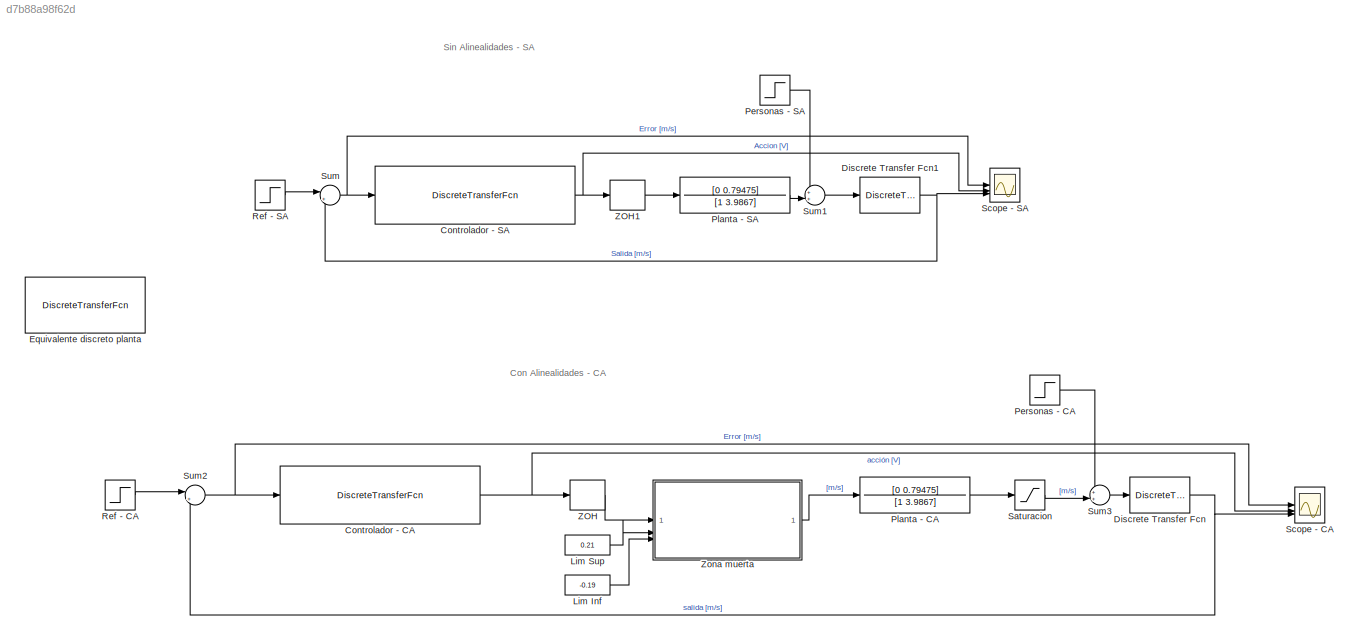
MODEL slx_d7b88a98f62d
KIND model
CONFIG AbsTol = auto
CONFIG EnableMultiTasking = off
CONFIG FixedStep = auto
CONFIG MaxStep = auto
CONFIG MinStep = auto
CONFIG RelTol = 1e-3
CONFIG SampleTimeConstraint = Unconstrained
CONFIG SolverName = VariableStepAuto
CONFIG StartTime = 0.0
CONFIG StopTime = 5
BLOCK [DiscreteTransferFcn] Controlador - CA
  Denominator = [1 -0.89484 -0.10201]
  InputPortMap = u0
  Numerator = [3.9289 -3.4172 0]
BLOCK [DiscreteTransferFcn] Controlador - SA
  Denominator = [1 -0.89484 -0.10201]
  InputPortMap = u0
  Numerator = [3.9289 -3.4172 0]
BLOCK [DiscreteTransferFcn] Discrete Transfer Fcn
  Denominator = [1 0]
  InputPortMap = u0
BLOCK [DiscreteTransferFcn] Discrete Transfer Fcn1
  Denominator = [1 0]
  InputPortMap = u0
BLOCK [DiscreteTransferFcn] Equivalente discreto planta
  Denominator = [1 -0.86976 0]
  InputPortMap = u0
  Numerator = [0 0 0.025963]
BLOCK [Constant] Lim Inf
  Value = -0.19
BLOCK [Constant] Lim Sup
  Value = 0.21
BLOCK [Step] Personas - CA
  After = -0.2
  SampleTime = 0.035
  Time = 2.5
BLOCK [Step] Personas - SA
  After = -0.2
  SampleTime = 0.035
  Time = 2.5
BLOCK [TransferFcn] Planta - CA
  Denominator = [1 3.9867]
  Numerator = [0 0.79475]
BLOCK [TransferFcn] Planta - SA
  Denominator = [1 3.9867]
  Numerator = [0 0.79475]
BLOCK [Step] Ref - CA
  After = -1
  SampleTime = 0.035
  Time = 0
BLOCK [Step] Ref - SA
  After = -1
  SampleTime = 0.035
  Time = 0
BLOCK [Saturate] Saturacion
  LowerLimit = -2.11
  UpperLimit = 2.11
BLOCK [Scope] Scope - CA
  Floating = off
  NumInputPorts = 3
  ScopeSpecificationString = Simulink.scopes.TimeScopeBlockCfg('CurrentConfiguration', extmgr.ConfigurationSet(extmgr.Configuration('Core','General UI',true),extmgr.Configuration('Core','Source UI',true),extmgr.Configuration('Sources','WiredSimulink',true,'DataLoggingVariableName','CA','DataLogging',true,'DataLoggingSaveFormat','StructureWithTime'),extmgr.Configuration('Visuals','Time Domain',true,'SerializedDisplays',{struct...<+1619ch>
BLOCK [Scope] Scope - SA
  Floating = off
  NumInputPorts = 3
  ScopeSpecificationString = Simulink.scopes.TimeScopeBlockCfg('CurrentConfiguration', extmgr.ConfigurationSet(extmgr.Configuration('Core','General UI',true),extmgr.Configuration('Core','Source UI',true),extmgr.Configuration('Sources','WiredSimulink',true,'DataLogging',true,'DataLoggingVariableName','SA','DataLoggingSaveFormat','StructureWithTime'),extmgr.Configuration('Visuals','Time Domain',true,'SerializedDisplays',{struct...<+1623ch>
BLOCK [Sum] Sum
  Inputs = |+-
BLOCK [Sum] Sum1
  Inputs = ++|
BLOCK [Sum] Sum2
  Inputs = |+-
BLOCK [Sum] Sum3
  Inputs = ++|
BLOCK [ZeroOrderHold] ZOH
  SampleTime = -1
BLOCK [ZeroOrderHold] ZOH1
  SampleTime = -1
BLOCK [SubSystem] Zona muerta
  ReferencedSubsystem = Zona_muerta
ANNOTATION (root): Con Alinealidades - CA
ANNOTATION (root): Sin Alinealidades - SA
NET Controlador - CA:1 -> Scope - CA:2, ZOH:1
NET Controlador - SA:1 -> Scope - SA:2, ZOH1:1
NET Discrete Transfer Fcn1:1 -> Scope - SA:3, Sum:2
NET Discrete Transfer Fcn:1 -> Scope - CA:3, Sum2:2
LINE Lim Inf:1 -> Zona muerta:3
LINE Lim Sup:1 -> Zona muerta:2
LINE Personas - CA:1 -> Sum3:1
LINE Personas - SA:1 -> Sum1:1
LINE Planta - CA:1 -> Saturacion:1
LINE Planta - SA:1 -> Sum1:2
LINE Ref - CA:1 -> Sum2:1
LINE Ref - SA:1 -> Sum:1
LINE Saturacion:1 -> Sum3:2
LINE Sum1:1 -> Discrete Transfer Fcn1:1
NET Sum2:1 -> Controlador - CA:1, Scope - CA:1
LINE Sum3:1 -> Discrete Transfer Fcn:1
NET Sum:1 -> Controlador - SA:1, Scope - SA:1
LINE ZOH1:1 -> Planta - SA:1
LINE ZOH:1 -> Zona muerta:1
LINE Zona muerta:1 -> Planta - CA:1
note: NET lines group one-source signal fan-out (src -> all destinations, sorted); 1:1 wires keep LINE
